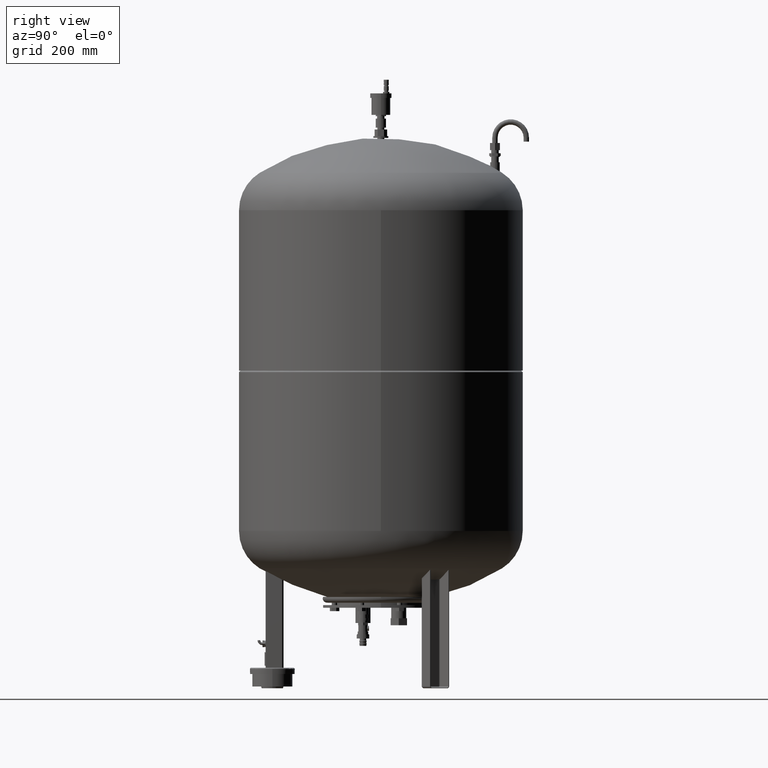
[diagram: clean part render]
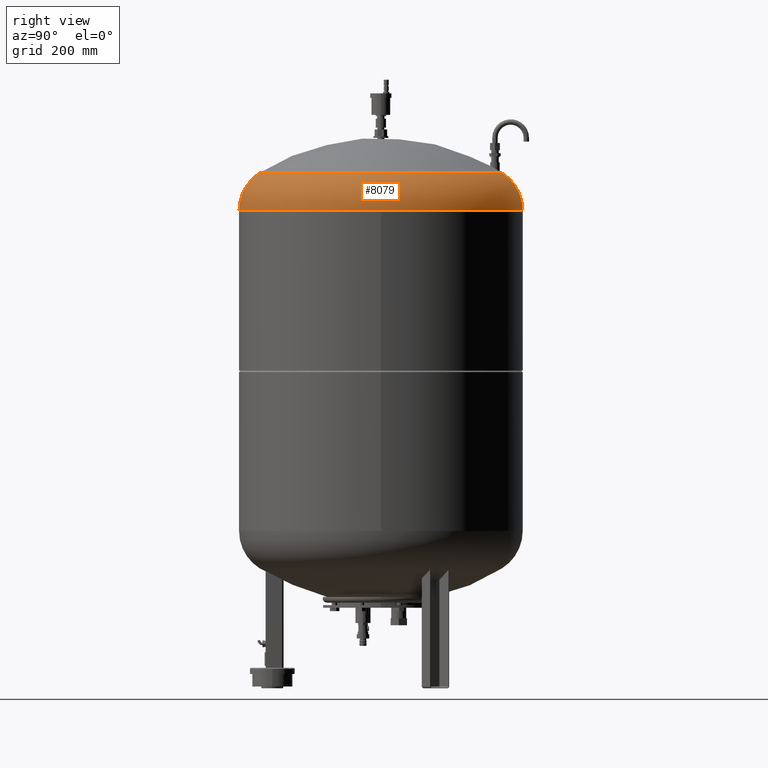
[diagram: same view with one face highlighted and labeled with its STEP entity id]
A machine part, right view. The second image highlights one B-rep face of the part: STEP entity #8079.
In plain terms, the highlighted toroidal blend (fillet) surface has major radius 218 mm and minor (blend) radius 99 mm.
Its self-contained STEP definition (entity closure, byte-faithful):
#7825=CARTESIAN_POINT('',(317.0,4.952583E-014,1068.240550627371200));
#7826=VERTEX_POINT('',#7825);
#7833=CARTESIAN_POINT('',(1.282117E-018,-317.0,1068.240550627371200));
#7834=VERTEX_POINT('',#7833);
#7835=CARTESIAN_POINT('',(-1.556097E-014,4.952455E-014,1068.240550627371200));
#7836=DIRECTION('',(0.0,0.0,-1.0));
#7837=DIRECTION('',(-1.0,0.0,0.0));
#7838=AXIS2_PLACEMENT_3D('',#7835,#7836,#7837);
#7839=CIRCLE('',#7838,317.000000000000060);
#7840=EDGE_CURVE('',#7826,#7834,#7839,.T.);
#7857=CARTESIAN_POINT('',(-3.882130E-014,317.000000000000110,1068.240550627371200));
#7858=VERTEX_POINT('',#7857);
#7859=CARTESIAN_POINT('',(-2.507790E-014,270.639024390243830,1152.086439681297600));
#7860=VERTEX_POINT('',#7859);
#7861=CARTESIAN_POINT('',(-2.669730E-014,218.000000000000060,1068.240550627371200));
#7862=DIRECTION('',(1.0,0.0,0.0));
#7863=DIRECTION('',(0.0,1.0,0.0));
#7864=AXIS2_PLACEMENT_3D('',#7861,#7862,#7863);
#7865=CIRCLE('',#7864,99.0);
#7866=EDGE_CURVE('',#7858,#7860,#7865,.T.);
#7876=CARTESIAN_POINT('',(8.066920E-015,-270.639024390243830,1152.086439681297600));
#7877=VERTEX_POINT('',#7876);
#7878=CARTESIAN_POINT('',(8.817081E-019,-217.999999999999940,1068.240550627371200));
#7879=DIRECTION('',(-1.0,0.0,0.0));
#7880=DIRECTION('',(0.0,-1.0,0.0));
#7881=AXIS2_PLACEMENT_3D('',#7878,#7879,#7880);
#7882=CIRCLE('',#7881,99.0);
#7883=EDGE_CURVE('',#7834,#7877,#7882,.T.);
#8051=CARTESIAN_POINT('',(-7.495146E-015,2.385415E-014,1152.086439681297600));
#8052=DIRECTION('',(0.0,0.0,-1.0));
#8053=DIRECTION('',(-1.0,0.0,0.0));
#8054=AXIS2_PLACEMENT_3D('',#8051,#8052,#8053);
#8055=CIRCLE('',#8054,270.639024390243830);
#8056=EDGE_CURVE('',#7860,#7877,#8055,.T.);
#8061=CARTESIAN_POINT('',(-3.639005E-030,4.952455E-014,1068.240550627371200));
#8062=DIRECTION('',(-9.619823E-017,3.061617E-016,-1.0));
#8063=DIRECTION('',(0.0,1.0,0.0));
#8064=AXIS2_PLACEMENT_3D('',#8061,#8062,#8063);
#8065=TOROIDAL_SURFACE('',#8064,218.0,99.0);
#8066=ORIENTED_EDGE('',*,*,#7866,.T.);
#8067=ORIENTED_EDGE('',*,*,#8056,.T.);
#8068=ORIENTED_EDGE('',*,*,#7883,.F.);
#8069=ORIENTED_EDGE('',*,*,#7840,.F.);
#8070=CARTESIAN_POINT('',(-1.556097E-014,4.952455E-014,1068.240550627371200));
#8071=DIRECTION('',(0.0,0.0,-1.0));
#8072=DIRECTION('',(-1.0,0.0,0.0));
#8073=AXIS2_PLACEMENT_3D('',#8070,#8071,#8072);
#8074=CIRCLE('',#8073,317.000000000000060);
#8075=EDGE_CURVE('',#7858,#7826,#8074,.T.);
#8076=ORIENTED_EDGE('',*,*,#8075,.F.);
#8077=EDGE_LOOP('',(#8066,#8067,#8068,#8069,#8076));
#8078=FACE_OUTER_BOUND('',#8077,.T.);
#8079=ADVANCED_FACE('',(#8078),#8065,.T.);